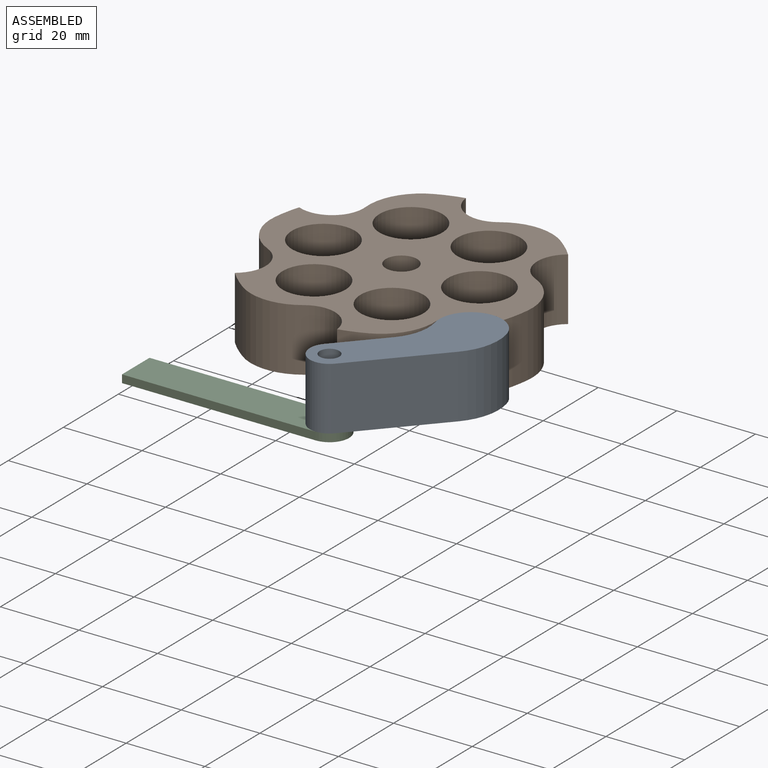
[diagram: assembled view]
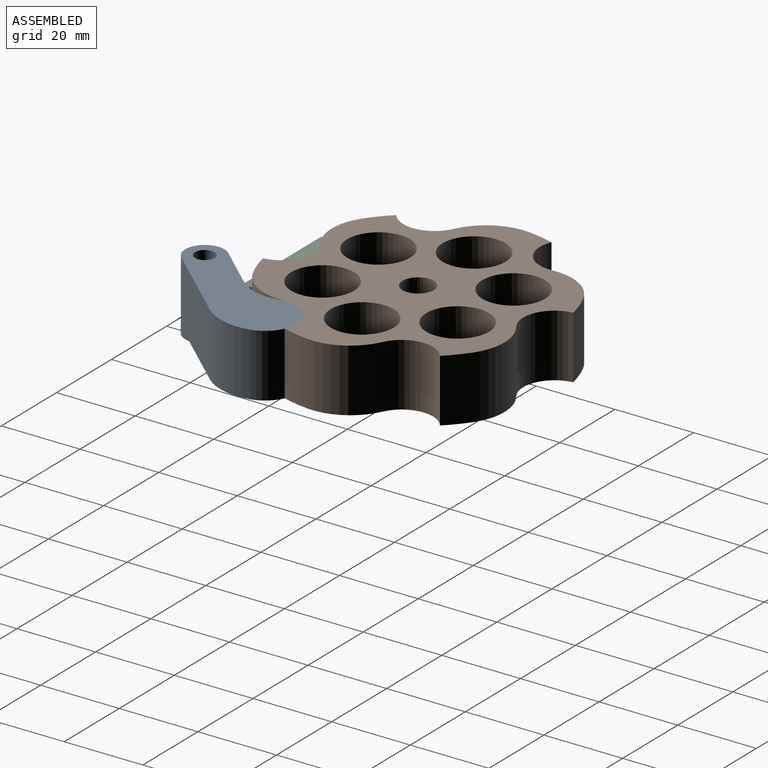
[diagram: assembled view, second angle]
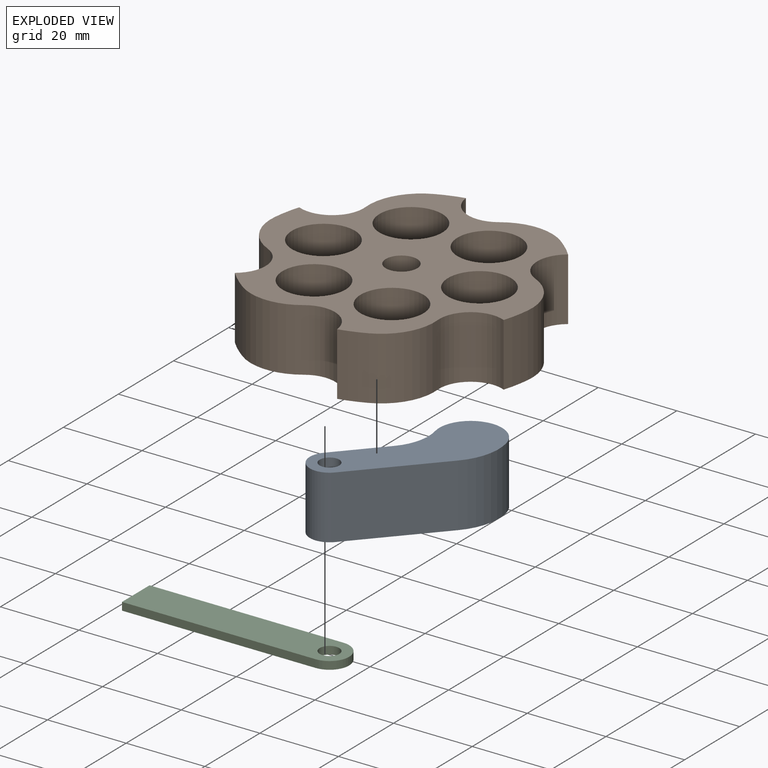
[diagram: exploded view]
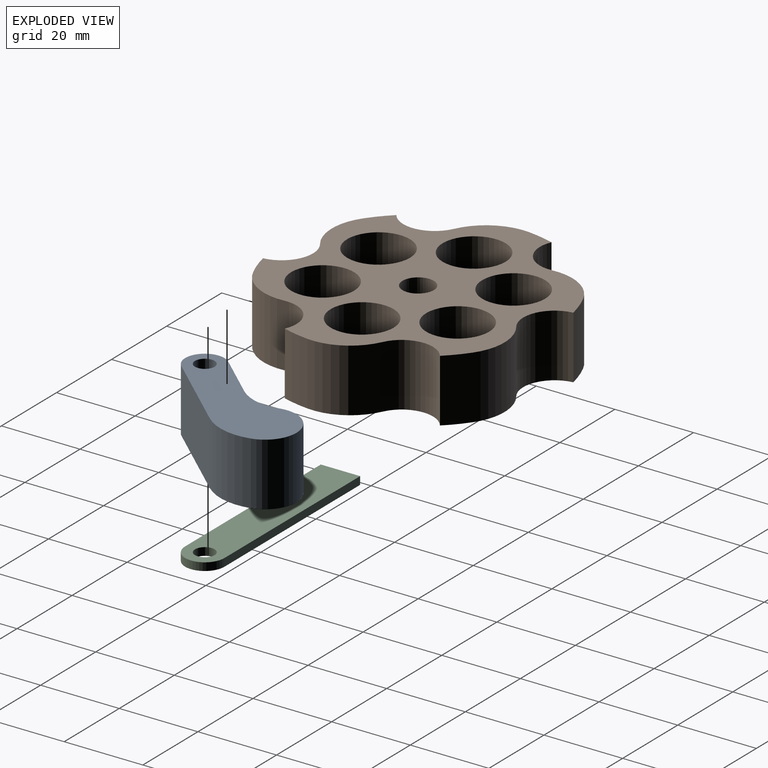
[diagram: exploded view, second angle]
ASSEMBLY  parts=3 mates=3
PART A: 9 faces, bbox 17.6x44.8x16 mm
  f0: cylinder r=5mm len=16mm, axis (0,0,-1), area 251.3mm2, adj f1,f5,f7,f8
  f1: plane 25.4x16mm, normal (0.96,-0.27,0), area 422.6mm2, adj f0,f2,f7,f8
  f2: cylinder r=14.14mm len=16mm, axis (0,0,-1), area 219mm2, adj f1,f3,f7,f8
  f3: cylinder r=8mm len=16mm, axis (0,0,-1), area 402.1mm2, adj f2,f4,f7,f8
  f4: cylinder r=12mm len=16mm, axis (0,0,-1), area 185.8mm2, adj f3,f5,f7,f8
  f5: plane 16x14.43mm, normal (-0.96,0.27,0), area 240mm2, adj f0,f4,f7,f8
  f6: cylinder r=2.5mm len=16mm, axis (0,0,-1), area 251.3mm2, adj f7,f8
  f7: plane 44.82x17.59mm, normal (0,0,1), area 503.5mm2, adj f0,f1,f2,f3,f4,f5,f6
  f8: plane 44.82x17.59mm, normal (0,0,-1), area 503.5mm2, adj f0,f1,f2,f3,f4,f5,f6
PART B: 27 faces, bbox 68.2x69.8x16 mm
  f0: cylinder r=35mm len=16mm, axis (0,0,-1), area 111mm2, adj f1,f23,f25,f26
  f1: cylinder r=13.5mm len=16mm, axis (0,0,-1), area 267.8mm2, adj f0,f2,f25,f26
  f2: cylinder r=8mm len=16mm, axis (0,0,-1), area 265.7mm2, adj f1,f3,f25,f26
  f3: cylinder r=35mm len=16mm, axis (0,0,-1), area 111mm2, adj f2,f4,f25,f26
  f4: cylinder r=13.5mm len=16mm, axis (0,0,-1), area 267.8mm2, adj f3,f5,f25,f26
  f5: cylinder r=8mm len=16mm, axis (0,0,-1), area 265.7mm2, adj f4,f6,f25,f26
  f6: cylinder r=35mm len=16mm, axis (0,0,-1), area 111mm2, adj f5,f7,f25,f26
  f7: cylinder r=13.5mm len=16mm, axis (0,0,-1), area 267.8mm2, adj f6,f8,f25,f26
  f8: cylinder r=8mm len=16mm, axis (0,0,-1), area 265.7mm2, adj f7,f9,f25,f26
  f9: cylinder r=35mm len=16mm, axis (0,0,-1), area 111mm2, adj f8,f10,f25,f26
  f10: cylinder r=13.5mm len=16mm, axis (0,0,-1), area 267.8mm2, adj f9,f11,f25,f26
  f11: cylinder r=8mm len=16mm, axis (0,0,-1), area 265.7mm2, adj f10,f12,f25,f26
  f12: cylinder r=35mm len=16mm, axis (0,0,-1), area 111mm2, adj f11,f13,f25,f26
  f13: cylinder r=13.5mm len=16mm, axis (0,0,-1), area 267.8mm2, adj f12,f14,f25,f26
  f14: cylinder r=8mm len=16mm, axis (0,0,-1), area 265.7mm2, adj f13,f15,f25,f26
  f15: cylinder r=35mm len=16mm, axis (0,0,-1), area 111mm2, adj f14,f16,f25,f26
  f16: cylinder r=13.5mm len=16mm, axis (0,0,-1), area 267.8mm2, adj f15,f23,f25,f26
  f17: cylinder r=8mm len=16mm, axis (0,0,-1), area 804.2mm2, adj f25,f26
  f18: cylinder r=8mm len=16mm, axis (0,0,-1), area 804.2mm2, adj f25,f26
  f19: cylinder r=4mm len=16mm, axis (0,0,-1), area 402.1mm2, adj f25,f26
  f20: cylinder r=8mm len=16mm, axis (0,0,-1), area 804.2mm2, adj f25,f26
  f21: cylinder r=8mm len=16mm, axis (0,0,-1), area 804.2mm2, adj f25,f26
  f22: cylinder r=8mm len=16mm, axis (0,0,-1), area 804.2mm2, adj f25,f26
  f23: cylinder r=8mm len=16mm, axis (0,0,-1), area 265.7mm2, adj f0,f16,f25,f26
  f24: cylinder r=8mm len=16mm, axis (0,0,-1), area 804.2mm2, adj f25,f26
  f25: plane 69.8x68.17mm, normal (0,0,1), area 1897.1mm2, adj f0,f1,f2,f3,f4,f5,f6,f7
  f26: plane 69.8x68.17mm, normal (0,0,-1), area 1897.1mm2, adj f0,f1,f2,f3,f4,f5,f6,f7
PART C: 7 faces, bbox 54.3x10x2 mm
  f0: plane 10x2mm, normal (-1,0,0), area 20mm2, adj f1,f3,f5,f6
  f1: plane 49.28x2mm, normal (0,-1,0), area 98.6mm2, adj f0,f2,f5,f6
  f2: cylinder r=5mm len=10mm, axis (0,0,1), area 31.4mm2, adj f1,f3,f5,f6
  f3: plane 49.28x2mm, normal (0,1,0), area 98.6mm2, adj f0,f2,f5,f6
  f4: cylinder r=2.5mm len=5mm, axis (0,0,1), area 31.4mm2, adj f5,f6
  f5: plane 54.28x10mm, normal (0,0,-1), area 512.4mm2, adj f0,f1,f2,f3,f4
  f6: plane 54.28x10mm, normal (0,0,1), area 512.4mm2, adj f0,f1,f2,f3,f4
PLACE A rot(axis=(0,0,-1),26.2deg) t=(-1.3,-2.4,0)mm
PLACE B rot(axis=(0,0,-1),30.7deg) t=(0,0,0)mm
PLACE C rot(axis=(0,0,1),0deg) t=(-3.06,0,0)mm
MATE revolute C.f2 <-> A.f0  axis (0,0,1) through (13.21,-45,0)mm
MATE planar B.f19 <-> A.f8  axis (0,0,-1) through (0,0,0)mm
MATE revolute B.f11 <-> A.f3  axis (0,0,1) through (30.11,-17.85,0)mm
